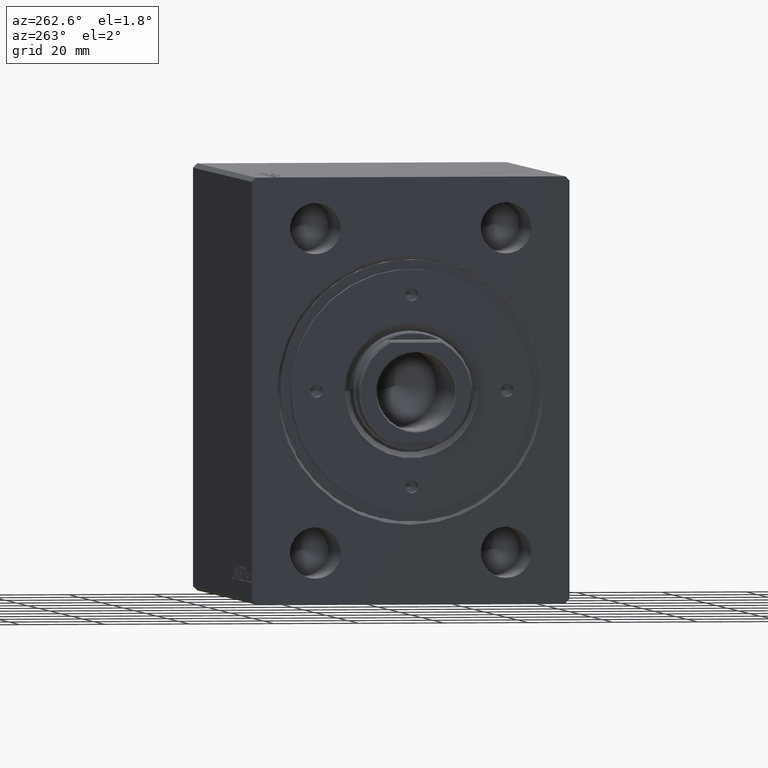
[diagram: clean part render]
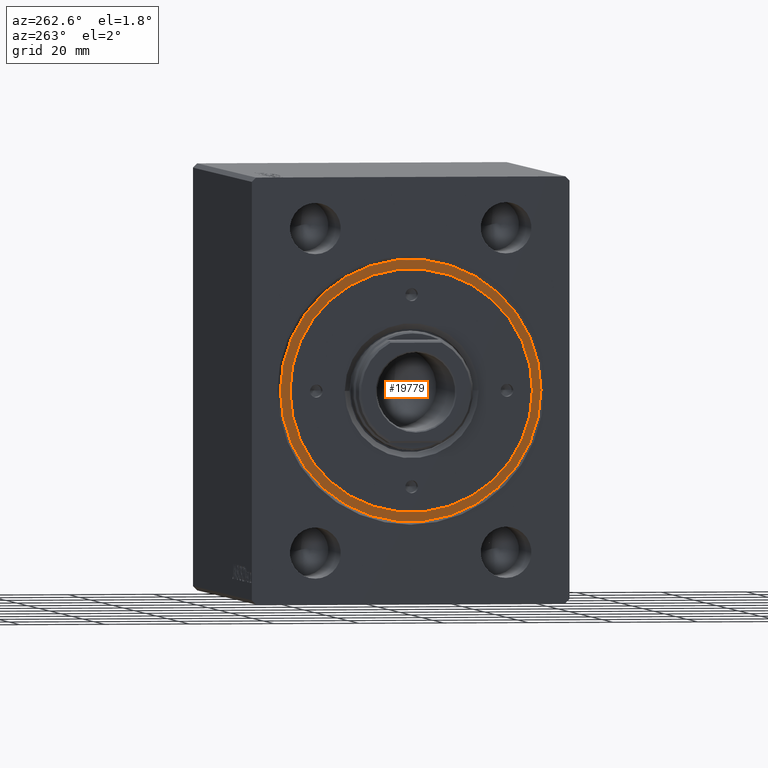
[diagram: same view with one face highlighted and labeled with its STEP entity id]
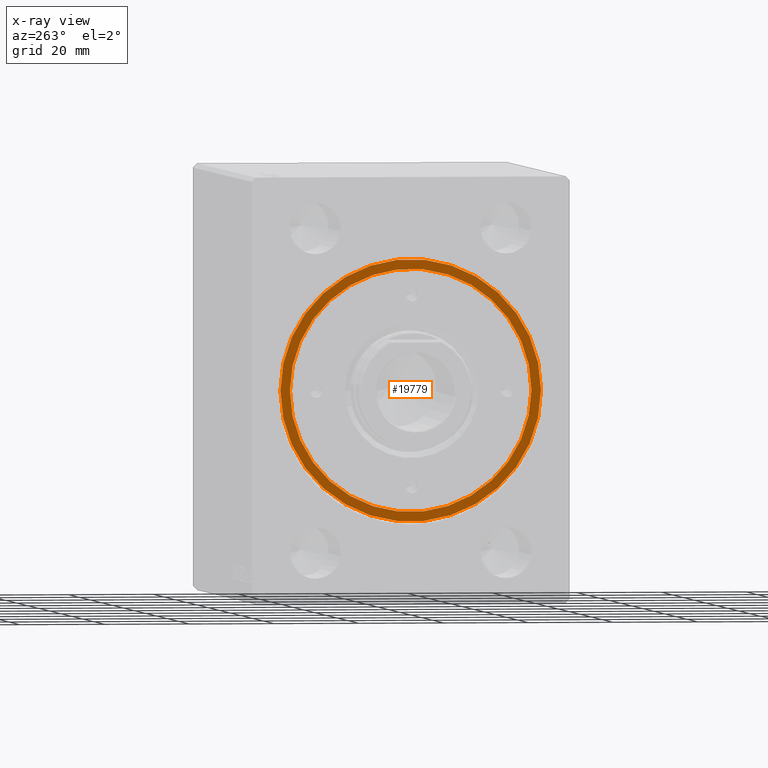
[diagram: x-ray of the same camera — body ghosted, the highlighted face saturated]
A machine part, auxiliary view. The second image highlights one B-rep face of the part: STEP entity #19779.
The next image is the same camera in x-ray: the body ghosted, the highlighted face saturated — about 0% of this face is hidden behind the body in this view.
In plain terms, the highlighted planar face has unit normal (-1, 0, 0).
Its self-contained STEP definition (entity closure, byte-faithful):
#23 = AXIS2_PLACEMENT_3D ( 'NONE', #39273, #28593, #32369 ) ;
#1966 = CARTESIAN_POINT ( 'NONE',  ( 28.50000000000000000, 3.490243377569956456E-15, 8.199999999999999289 ) ) ;
#2850 = DIRECTION ( 'NONE',  ( 1.000000000000000000, 0.000000000000000000, 0.000000000000000000 ) ) ;
#3070 = DIRECTION ( 'NONE',  ( 0.000000000000000000, 0.000000000000000000, 1.000000000000000000 ) ) ;
#4814 = DIRECTION ( 'NONE',  ( 1.000000000000000000, 0.000000000000000000, -0.000000000000000000 ) ) ;
#5020 = ORIENTED_EDGE ( 'NONE', *, *, #10687, .T. ) ;
#5542 = CARTESIAN_POINT ( 'NONE',  ( -30.75000000000000355, 0.000000000000000000, 8.199999999999999289 ) ) ;
#6559 = VERTEX_POINT ( 'NONE', #1966 ) ;
#6668 = EDGE_CURVE ( 'NONE', #14507, #24496, #33735, .T. ) ;
#9276 = CIRCLE ( 'NONE', #23, 28.50000000000000000 ) ;
#10311 = CARTESIAN_POINT ( 'NONE',  ( -28.50000000000000000, 0.000000000000000000, 8.199999999999999289 ) ) ;
#10687 = EDGE_CURVE ( 'NONE', #24496, #14507, #14642, .T. ) ;
#11646 = CARTESIAN_POINT ( 'NONE',  ( 0.000000000000000000, 0.000000000000000000, 8.199999999999999289 ) ) ;
#12532 = AXIS2_PLACEMENT_3D ( 'NONE', #17955, #21065, #31519 ) ;
#14507 = VERTEX_POINT ( 'NONE', #29680 ) ;
#14561 = AXIS2_PLACEMENT_3D ( 'NONE', #39783, #3070, #2850 ) ;
#14642 = CIRCLE ( 'NONE', #12532, 30.75000000000000355 ) ;
#14764 = DIRECTION ( 'NONE',  ( 0.000000000000000000, 0.000000000000000000, 1.000000000000000000 ) ) ;
#15210 = DIRECTION ( 'NONE',  ( 1.000000000000000000, 0.000000000000000000, 0.000000000000000000 ) ) ;
#17954 = DIRECTION ( 'NONE',  ( 0.000000000000000000, 0.000000000000000000, 1.000000000000000000 ) ) ;
#17955 = CARTESIAN_POINT ( 'NONE',  ( 0.000000000000000000, 0.000000000000000000, 8.199999999999999289 ) ) ;
#19779 = ADVANCED_FACE ( 'NONE', ( #34852, #21945 ), #21510, .T. ) ;
#19953 = EDGE_LOOP ( 'NONE', ( #23733, #28022 ) ) ;
#21065 = DIRECTION ( 'NONE',  ( 0.000000000000000000, 0.000000000000000000, 1.000000000000000000 ) ) ;
#21221 = AXIS2_PLACEMENT_3D ( 'NONE', #38629, #17954, #4814 ) ;
#21510 = PLANE ( 'NONE',  #21221 ) ;
#21519 = AXIS2_PLACEMENT_3D ( 'NONE', #11646, #14764, #15210 ) ;
#21945 = FACE_OUTER_BOUND ( 'NONE', #34778, .T. ) ;
#23733 = ORIENTED_EDGE ( 'NONE', *, *, #32048, .F. ) ;
#24496 = VERTEX_POINT ( 'NONE', #5542 ) ;
#28022 = ORIENTED_EDGE ( 'NONE', *, *, #39671, .F. ) ;
#28593 = DIRECTION ( 'NONE',  ( 0.000000000000000000, 0.000000000000000000, 1.000000000000000000 ) ) ;
#29680 = CARTESIAN_POINT ( 'NONE',  ( 30.75000000000000355, 3.765788907378111328E-15, 8.199999999999999289 ) ) ;
#31519 = DIRECTION ( 'NONE',  ( 1.000000000000000000, 0.000000000000000000, 0.000000000000000000 ) ) ;
#32048 = EDGE_CURVE ( 'NONE', #38068, #6559, #9276, .T. ) ;
#32369 = DIRECTION ( 'NONE',  ( 1.000000000000000000, 0.000000000000000000, 0.000000000000000000 ) ) ;
#33735 = CIRCLE ( 'NONE', #14561, 30.75000000000000355 ) ;
#34778 = EDGE_LOOP ( 'NONE', ( #5020, #35871 ) ) ;
#34852 = FACE_BOUND ( 'NONE', #19953, .T. ) ;
#35871 = ORIENTED_EDGE ( 'NONE', *, *, #6668, .T. ) ;
#37145 = CIRCLE ( 'NONE', #21519, 28.50000000000000000 ) ;
#38068 = VERTEX_POINT ( 'NONE', #10311 ) ;
#38629 = CARTESIAN_POINT ( 'NONE',  ( 0.000000000000000000, 0.000000000000000000, 8.199999999999999289 ) ) ;
#39273 = CARTESIAN_POINT ( 'NONE',  ( 0.000000000000000000, 0.000000000000000000, 8.199999999999999289 ) ) ;
#39671 = EDGE_CURVE ( 'NONE', #6559, #38068, #37145, .T. ) ;
#39783 = CARTESIAN_POINT ( 'NONE',  ( 0.000000000000000000, 0.000000000000000000, 8.199999999999999289 ) ) ;